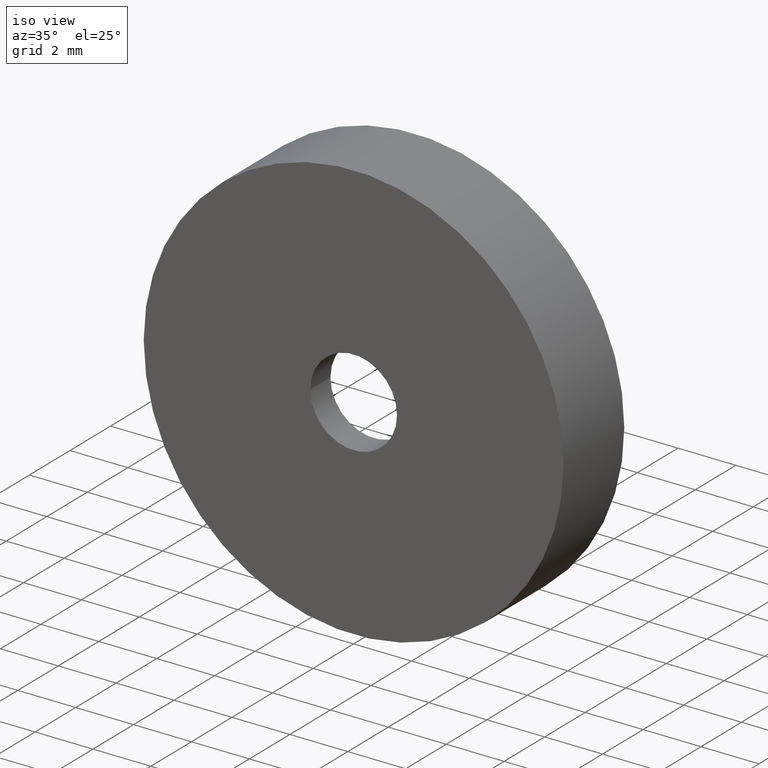
[diagram: clean part render]
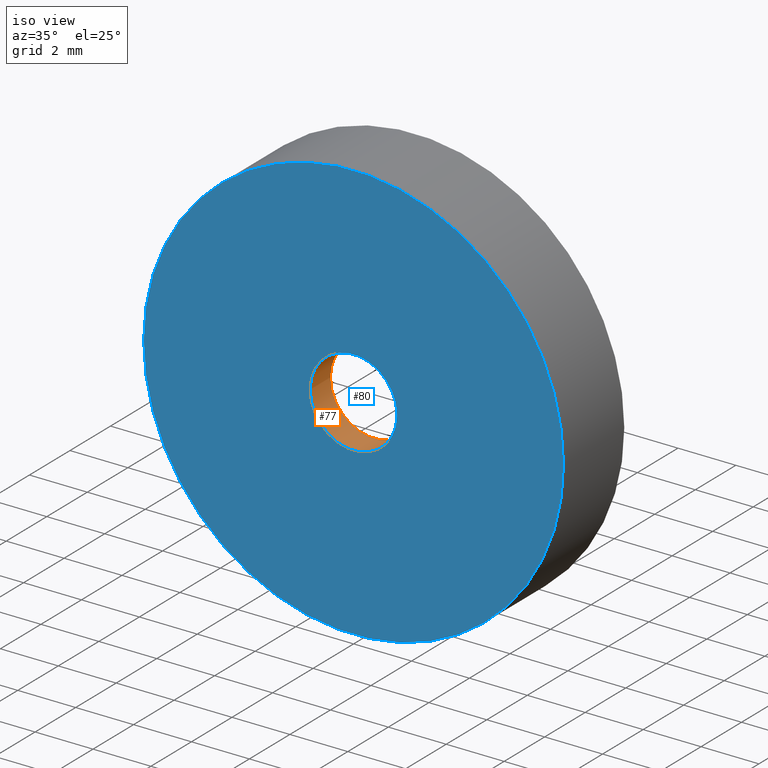
[diagram: same view with the hole feature highlighted: cylindrical wall and planar end face, labeled with their STEP entity ids]
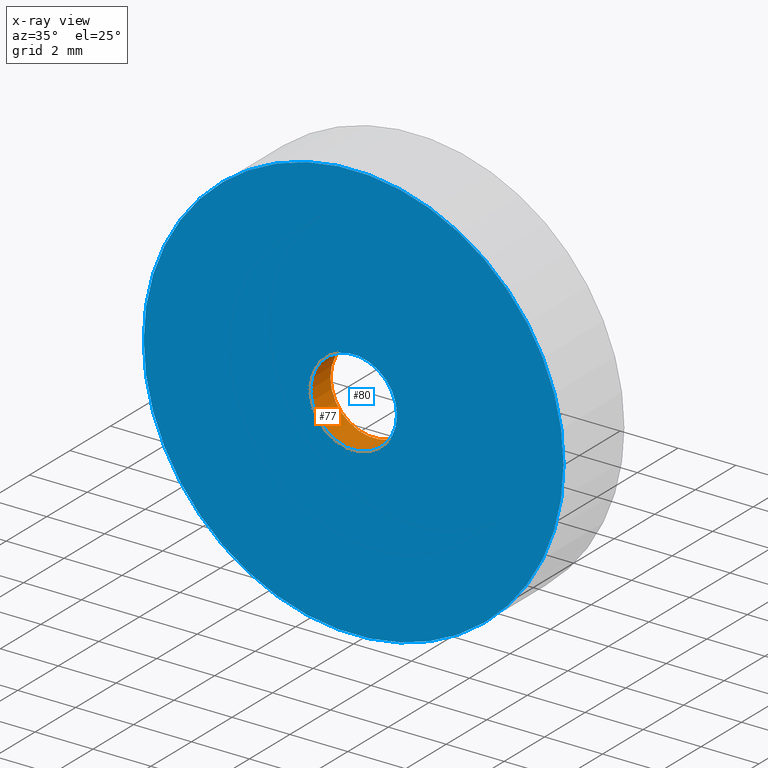
[diagram: x-ray of the same camera — body ghosted, the hole faces saturated]
A machine part, iso view. The highlighted faces form one hole feature of diameter 3 mm: the cylindrical wall (entity #77, orange) and its adjacent planar end face (entity #80, blue) — they share a circular edge in the B-rep.
The next image is the same camera in x-ray (body ghosted, the hole faces saturated) — the bore reads through the body.
Wall:
#16=CYLINDRICAL_SURFACE('',#88,1.5);
#20=FACE_BOUND('',#35,.T.);
#26=FACE_OUTER_BOUND('',#34,.T.);
#34=EDGE_LOOP('',(#64));
#35=EDGE_LOOP('',(#65));
#43=CIRCLE('',#85,1.5);
#45=CIRCLE('',#89,1.5);
#49=VERTEX_POINT('',#125);
#51=VERTEX_POINT('',#131);
#55=EDGE_CURVE('',#49,#49,#43,.T.);
#57=EDGE_CURVE('',#51,#51,#45,.T.);
#64=ORIENTED_EDGE('',*,*,#55,.T.);
#65=ORIENTED_EDGE('',*,*,#57,.F.);
#77=ADVANCED_FACE('',(#26,#20),#16,.F.);
#85=AXIS2_PLACEMENT_3D('',#126,#101,#102);
#88=AXIS2_PLACEMENT_3D('',#130,#107,#108);
#89=AXIS2_PLACEMENT_3D('',#132,#109,#110);
#101=DIRECTION('center_axis',(0.,1.,0.));
#102=DIRECTION('ref_axis',(-1.,0.,0.));
#107=DIRECTION('center_axis',(0.,1.,0.));
#108=DIRECTION('ref_axis',(-1.,0.,0.));
#109=DIRECTION('center_axis',(0.,1.,0.));
#110=DIRECTION('ref_axis',(-1.,0.,0.));
#125=CARTESIAN_POINT('',(1.5,1.,-1.83697019872103E-16));
#126=CARTESIAN_POINT('Origin',(0.,1.,0.));
#130=CARTESIAN_POINT('Origin',(0.,1.5,0.));
#131=CARTESIAN_POINT('',(-1.5,0.,0.));
#132=CARTESIAN_POINT('Origin',(0.,0.,0.));
End face:
#23=FACE_BOUND('',#41,.T.);
#29=FACE_OUTER_BOUND('',#40,.T.);
#40=EDGE_LOOP('',(#70));
#41=EDGE_LOOP('',(#71));
#45=CIRCLE('',#89,1.5);
#47=CIRCLE('',#92,7.25);
#51=VERTEX_POINT('',#131);
#53=VERTEX_POINT('',#136);
#57=EDGE_CURVE('',#51,#51,#45,.T.);
#59=EDGE_CURVE('',#53,#53,#47,.T.);
#70=ORIENTED_EDGE('',*,*,#59,.T.);
#71=ORIENTED_EDGE('',*,*,#57,.T.);
#74=PLANE('',#94);
#80=ADVANCED_FACE('',(#29,#23),#74,.F.);
#89=AXIS2_PLACEMENT_3D('',#132,#109,#110);
#92=AXIS2_PLACEMENT_3D('',#137,#115,#116);
#94=AXIS2_PLACEMENT_3D('',#139,#119,#120);
#109=DIRECTION('center_axis',(0.,1.,0.));
#110=DIRECTION('ref_axis',(-1.,0.,0.));
#115=DIRECTION('center_axis',(0.,-1.,0.));
#116=DIRECTION('ref_axis',(1.,0.,0.));
#119=DIRECTION('center_axis',(0.,1.,0.));
#120=DIRECTION('ref_axis',(0.,0.,1.));
#131=CARTESIAN_POINT('',(-1.5,0.,0.));
#132=CARTESIAN_POINT('Origin',(0.,0.,0.));
#136=CARTESIAN_POINT('',(-7.25,0.,8.87868929381831E-16));
#137=CARTESIAN_POINT('Origin',(0.,0.,0.));
#139=CARTESIAN_POINT('Origin',(3.29212761270361E-16,0.,1.27611841910938E-16));